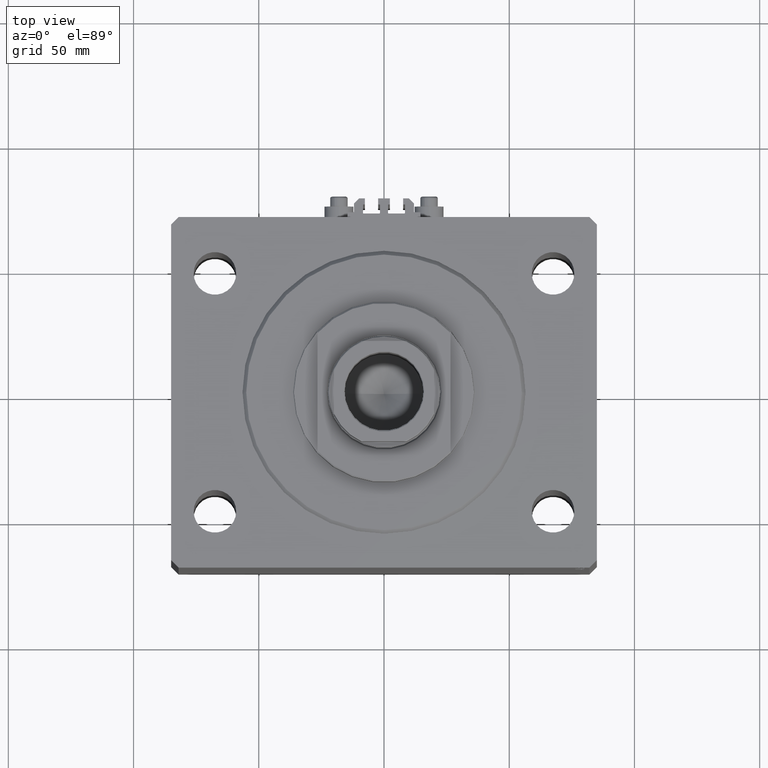
[diagram: clean part render]
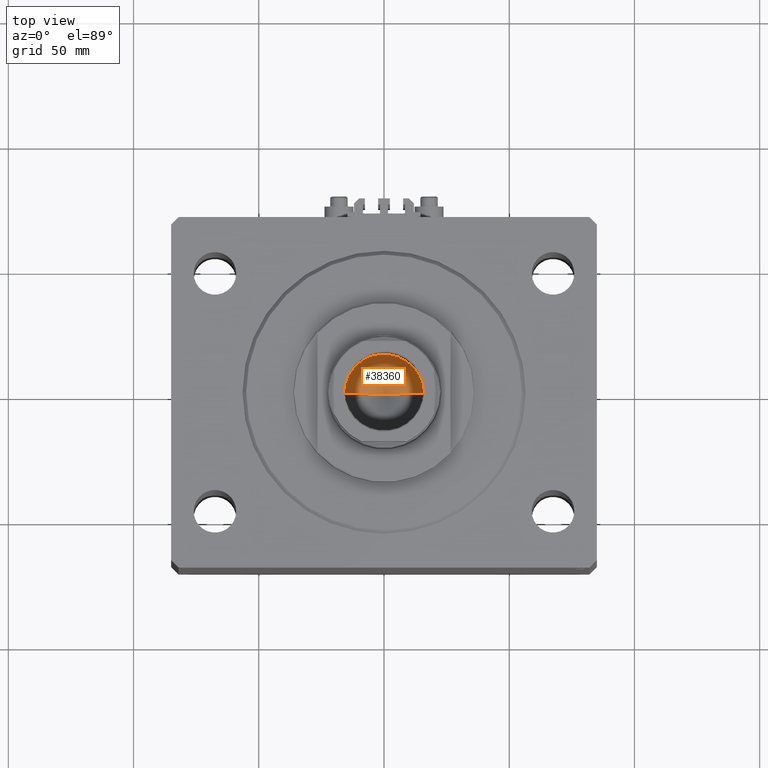
[diagram: same view with one face highlighted and labeled with its STEP entity id]
A machine part, top view. The second image highlights one B-rep face of the part: STEP entity #38360.
In plain terms, the highlighted conical surface has half-angle 59 deg.
Its self-contained STEP definition (entity closure, byte-faithful):
#554 = LINE ( 'NONE', #41013, #29685 ) ;
#3289 = VECTOR ( 'NONE', #30413, 1000.000000000000000 ) ;
#4245 = CARTESIAN_POINT ( 'NONE',  ( -15.74999999999998934, 1.928818708657080161E-15, 101.0000000000000284 ) ) ;
#5290 = CARTESIAN_POINT ( 'NONE',  ( 0.000000000000000000, 0.000000000000000000, 101.0000000000000284 ) ) ;
#6807 = ORIENTED_EDGE ( 'NONE', *, *, #38981, .T. ) ;
#8058 = EDGE_CURVE ( 'NONE', #28171, #14510, #33544, .T. ) ;
#9237 = ORIENTED_EDGE ( 'NONE', *, *, #8058, .F. ) ;
#10085 = ORIENTED_EDGE ( 'NONE', *, *, #30447, .T. ) ;
#11817 = CARTESIAN_POINT ( 'NONE',  ( 0.000000000000000000, 0.000000000000000000, 101.0000000000000284 ) ) ;
#14510 = VERTEX_POINT ( 'NONE', #4245 ) ;
#17465 = CONICAL_SURFACE ( 'NONE', #21294, 15.74999999999998934, 1.029744258676653645 ) ;
#17609 = FACE_OUTER_BOUND ( 'NONE', #25989, .T. ) ;
#19007 = DIRECTION ( 'NONE',  ( -0.000000000000000000, -0.000000000000000000, 1.000000000000000000 ) ) ;
#20392 = CIRCLE ( 'NONE', #22711, 15.74999999999998934 ) ;
#21294 = AXIS2_PLACEMENT_3D ( 'NONE', #11817, #19007, #40339 ) ;
#22711 = AXIS2_PLACEMENT_3D ( 'NONE', #5290, #39698, #28901 ) ;
#25615 = VERTEX_POINT ( 'NONE', #37352 ) ;
#25989 = EDGE_LOOP ( 'NONE', ( #9237, #6807, #10085 ) ) ;
#28171 = VERTEX_POINT ( 'NONE', #38451 ) ;
#28901 = DIRECTION ( 'NONE',  ( 1.000000000000000000, 0.000000000000000000, 0.000000000000000000 ) ) ;
#29685 = VECTOR ( 'NONE', #37197, 1000.000000000000000 ) ;
#30173 = CARTESIAN_POINT ( 'NONE',  ( -15.74999999999998934, 1.928818708657080161E-15, 101.0000000000000284 ) ) ;
#30413 = DIRECTION ( 'NONE',  ( -0.8571673007021118895, 1.049727191138618079E-16, 0.5150380749100549327 ) ) ;
#30447 = EDGE_CURVE ( 'NONE', #25615, #14510, #20392, .T. ) ;
#33544 = LINE ( 'NONE', #30173, #3289 ) ;
#37197 = DIRECTION ( 'NONE',  ( 0.8571673007021118895, 0.000000000000000000, 0.5150380749100549327 ) ) ;
#37352 = CARTESIAN_POINT ( 'NONE',  ( 15.74999999999998934, 0.000000000000000000, 101.0000000000000284 ) ) ;
#38360 = ADVANCED_FACE ( 'NONE', ( #17609 ), #17465, .F. ) ;
#38451 = CARTESIAN_POINT ( 'NONE',  ( -1.480675244360640996E-14, 0.000000000000000000, 91.53644525031594981 ) ) ;
#38981 = EDGE_CURVE ( 'NONE', #28171, #25615, #554, .T. ) ;
#39698 = DIRECTION ( 'NONE',  ( -0.000000000000000000, -0.000000000000000000, 1.000000000000000000 ) ) ;
#40339 = DIRECTION ( 'NONE',  ( 1.000000000000000000, 0.000000000000000000, 0.000000000000000000 ) ) ;
#41013 = CARTESIAN_POINT ( 'NONE',  ( 15.74999999999998934, 0.000000000000000000, 101.0000000000000284 ) ) ;